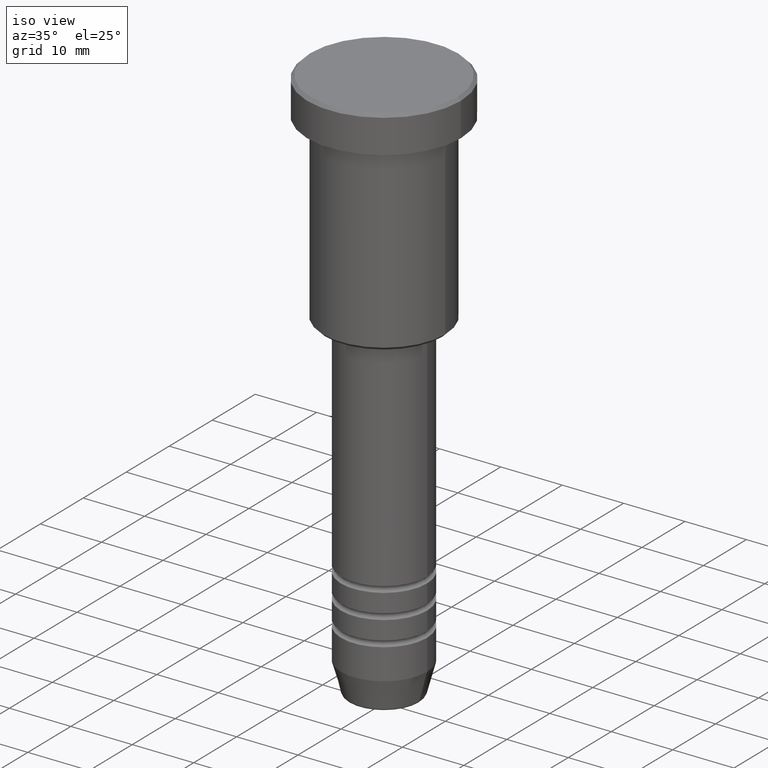
[diagram: clean part render]
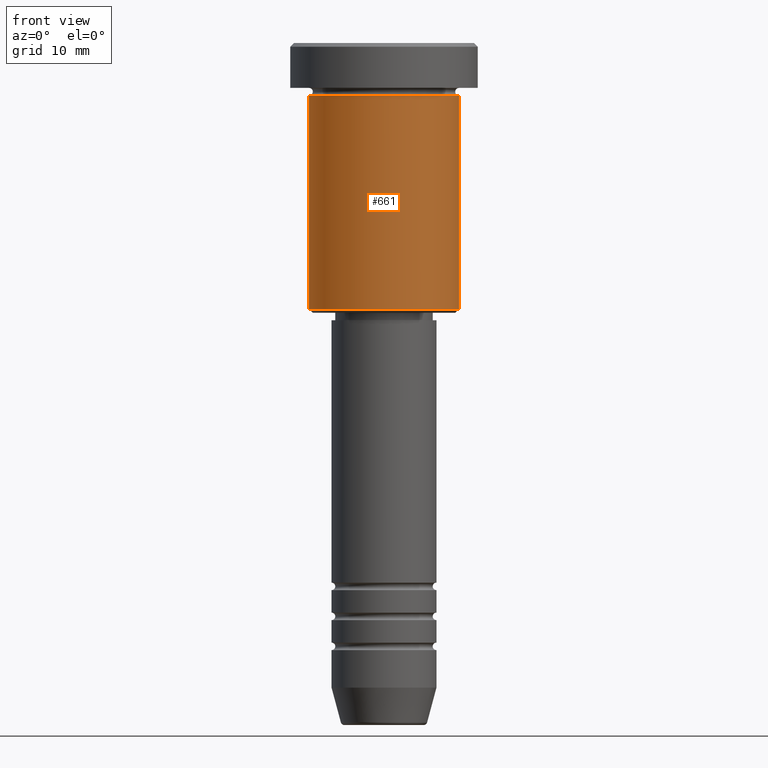
[diagram: tour spotlight — one face highlighted and labeled with its STEP entity id]
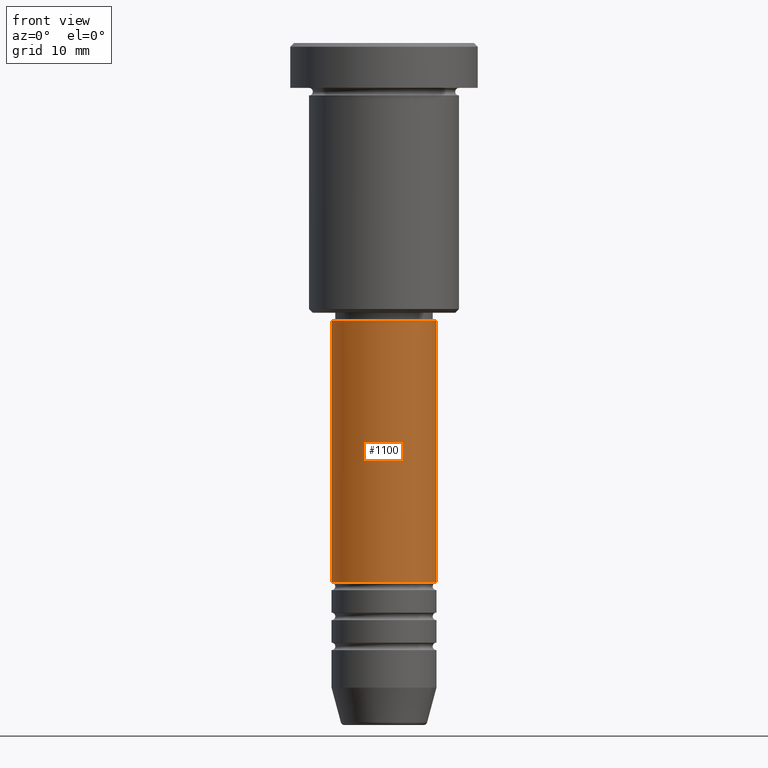
[diagram: tour spotlight — one face highlighted and labeled with its STEP entity id]
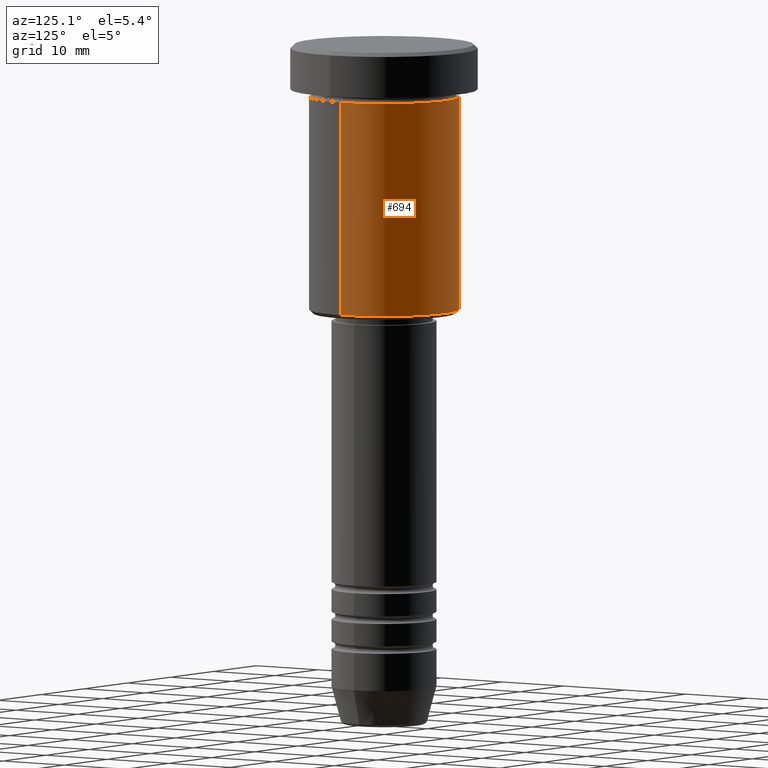
[diagram: tour spotlight — one face highlighted and labeled with its STEP entity id]
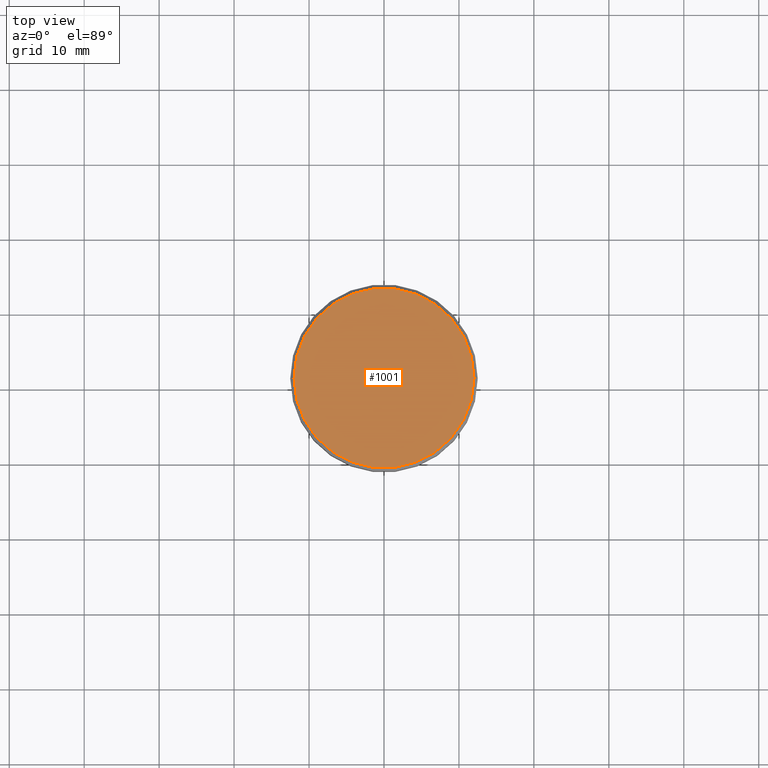
[diagram: tour spotlight — one face highlighted and labeled with its STEP entity id]
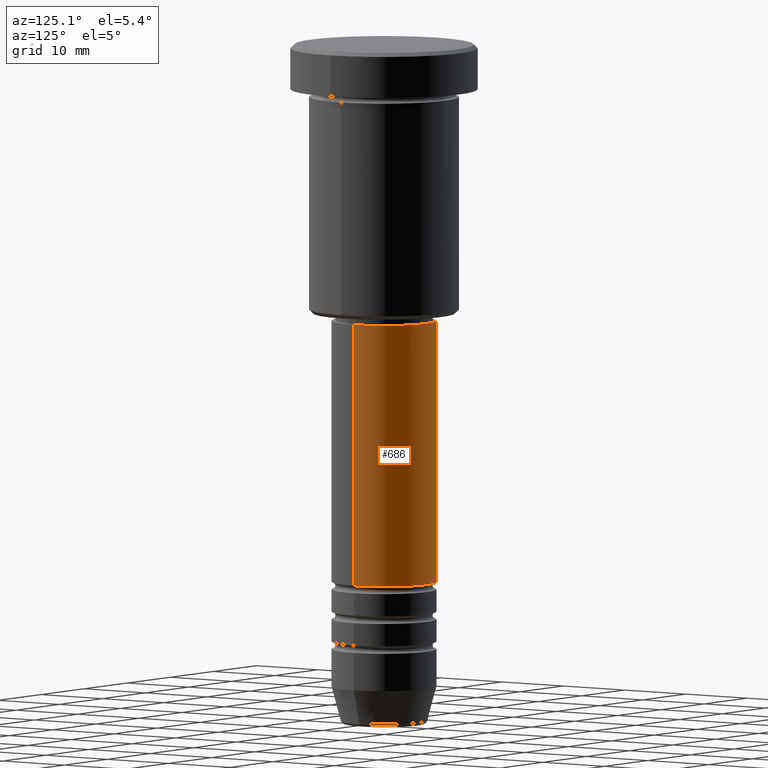
[diagram: tour spotlight — one face highlighted and labeled with its STEP entity id]
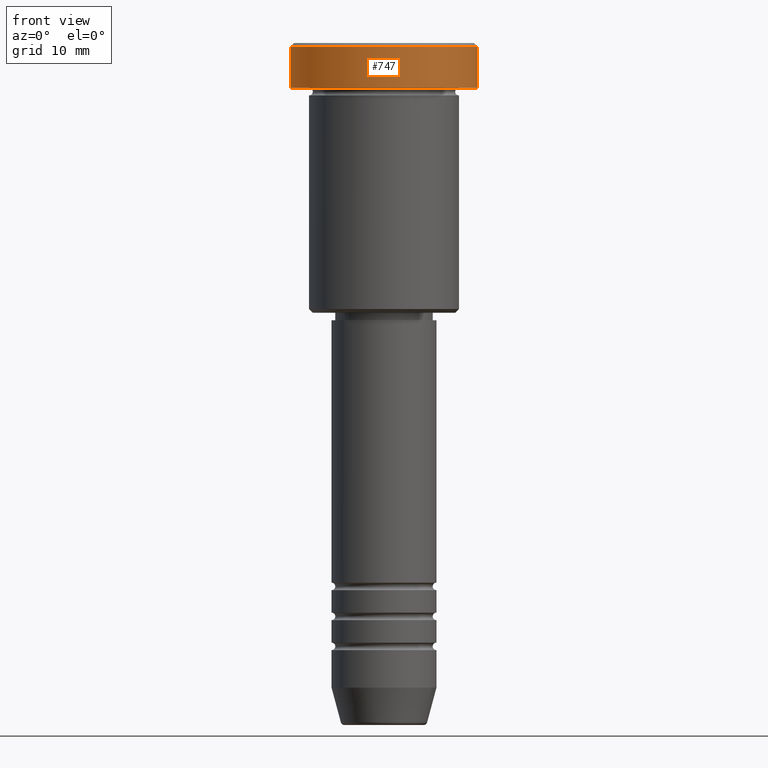
[diagram: tour spotlight — one face highlighted and labeled with its STEP entity id]
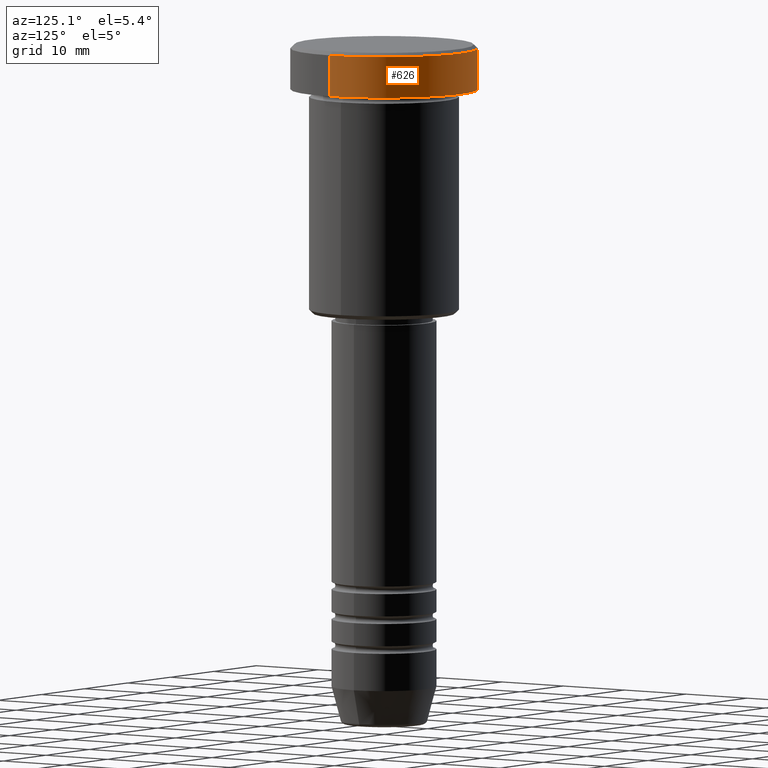
[diagram: tour spotlight — one face highlighted and labeled with its STEP entity id]
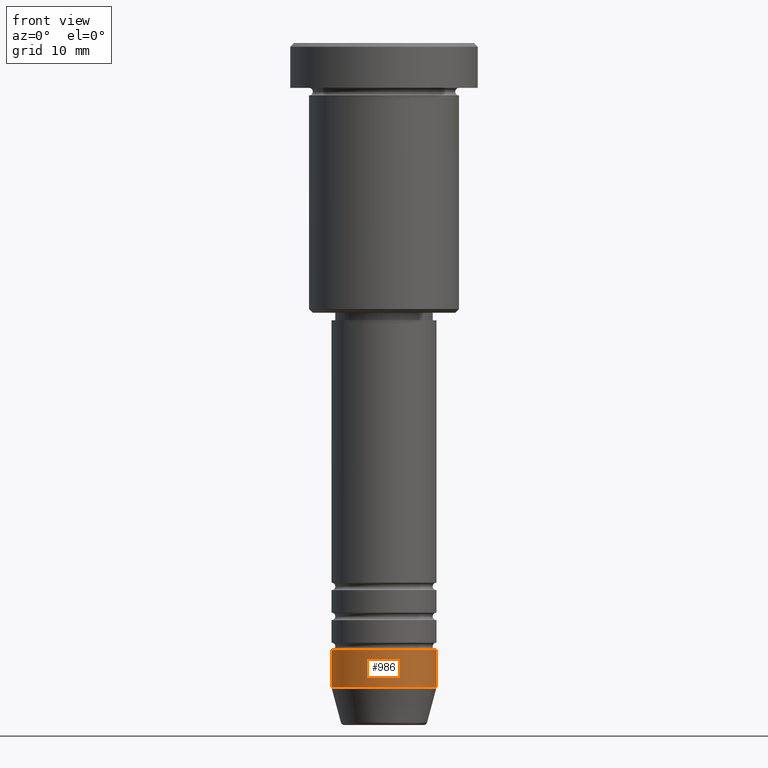
[diagram: tour spotlight — one face highlighted and labeled with its STEP entity id]
A machine part: a face-by-face anatomy tour. The part has 43 B-rep faces; the first image is the clean iso view, then the 8 largest visible faces are spotlighted one at a time (largest first), each with its STEP entity span.

Face 1 — front view, entity #661. In plain terms, the highlighted cylindrical surface (partial cylindrical patch) has radius 10 mm, axis along (-0, -0, 1).
Definition (entity closure, byte-faithful):
#31 = CYLINDRICAL_SURFACE ( 'NONE', #930, 10.00000000000000000 ) ;
#85 = VERTEX_POINT ( 'NONE', #410 ) ;
#122 = EDGE_CURVE ( 'NONE', #287, #85, #232, .T. ) ;
#144 = EDGE_CURVE ( 'NONE', #583, #287, #688, .T. ) ;
#176 = DIRECTION ( 'NONE',  ( -0.000000000000000000, -0.000000000000000000, 1.000000000000000000 ) ) ;
#232 = LINE ( 'NONE', #601, #670 ) ;
#259 = CARTESIAN_POINT ( 'NONE',  ( -10.00000000000000000, 1.224646799147353256E-15, -35.49999999999999289 ) ) ;
#276 = ORIENTED_EDGE ( 'NONE', *, *, #309, .F. ) ;
#287 = VERTEX_POINT ( 'NONE', #742 ) ;
#309 = EDGE_CURVE ( 'NONE', #583, #882, #956, .T. ) ;
#313 = CARTESIAN_POINT ( 'NONE',  ( 0.000000000000000000, 0.000000000000000000, 0.000000000000000000 ) ) ;
#346 = AXIS2_PLACEMENT_3D ( 'NONE', #640, #176, #460 ) ;
#410 = CARTESIAN_POINT ( 'NONE',  ( 10.00000000000000000, 0.000000000000000000, -6.999999999999996447 ) ) ;
#460 = DIRECTION ( 'NONE',  ( 1.000000000000000000, 0.000000000000000000, 0.000000000000000000 ) ) ;
#474 = CARTESIAN_POINT ( 'NONE',  ( -10.00000000000000000, 1.224646799147353256E-15, 0.000000000000000000 ) ) ;
#481 = DIRECTION ( 'NONE',  ( -0.000000000000000000, -0.000000000000000000, 1.000000000000000000 ) ) ;
#495 = CIRCLE ( 'NONE', #346, 10.00000000000000000 ) ;
#519 = ORIENTED_EDGE ( 'NONE', *, *, #939, .F. ) ;
#541 = DIRECTION ( 'NONE',  ( -1.000000000000000000, 0.000000000000000000, 0.000000000000000000 ) ) ;
#583 = VERTEX_POINT ( 'NONE', #259 ) ;
#590 = ORIENTED_EDGE ( 'NONE', *, *, #144, .T. ) ;
#601 = CARTESIAN_POINT ( 'NONE',  ( 10.00000000000000000, 0.000000000000000000, 0.000000000000000000 ) ) ;
#640 = CARTESIAN_POINT ( 'NONE',  ( 0.000000000000000000, 0.000000000000000000, -6.999999999999996447 ) ) ;
#661 = ADVANCED_FACE ( 'NONE', ( #750 ), #31, .T. ) ;
#670 = VECTOR ( 'NONE', #964, 1000.000000000000000 ) ;
#688 = CIRCLE ( 'NONE', #853, 10.00000000000000000 ) ;
#704 = CARTESIAN_POINT ( 'NONE',  ( 0.000000000000000000, 0.000000000000000000, -35.49999999999999289 ) ) ;
#742 = CARTESIAN_POINT ( 'NONE',  ( 10.00000000000000000, 0.000000000000000000, -35.49999999999999289 ) ) ;
#750 = FACE_OUTER_BOUND ( 'NONE', #941, .T. ) ;
#781 = VECTOR ( 'NONE', #943, 1000.000000000000000 ) ;
#819 = CARTESIAN_POINT ( 'NONE',  ( -10.00000000000000000, 1.224646799147353256E-15, -6.999999999999996447 ) ) ;
#853 = AXIS2_PLACEMENT_3D ( 'NONE', #704, #1005, #541 ) ;
#882 = VERTEX_POINT ( 'NONE', #819 ) ;
#898 = ORIENTED_EDGE ( 'NONE', *, *, #122, .T. ) ;
#930 = AXIS2_PLACEMENT_3D ( 'NONE', #313, #481, #947 ) ;
#939 = EDGE_CURVE ( 'NONE', #882, #85, #495, .T. ) ;
#941 = EDGE_LOOP ( 'NONE', ( #276, #590, #898, #519 ) ) ;
#943 = DIRECTION ( 'NONE',  ( -0.000000000000000000, -0.000000000000000000, 1.000000000000000000 ) ) ;
#947 = DIRECTION ( 'NONE',  ( 1.000000000000000000, 0.000000000000000000, 0.000000000000000000 ) ) ;
#956 = LINE ( 'NONE', #474, #781 ) ;
#964 = DIRECTION ( 'NONE',  ( -0.000000000000000000, -0.000000000000000000, 1.000000000000000000 ) ) ;
#1005 = DIRECTION ( 'NONE',  ( -0.000000000000000000, -0.000000000000000000, 1.000000000000000000 ) ) ;

Face 2 — front view, entity #1100. In plain terms, the highlighted cylindrical surface (partial cylindrical patch) has radius 7 mm, axis along (-0, -0, 1).
Definition (entity closure, byte-faithful):
#23 = ORIENTED_EDGE ( 'NONE', *, *, #199, .F. ) ;
#80 = LINE ( 'NONE', #718, #369 ) ;
#91 = DIRECTION ( 'NONE',  ( 1.000000000000000000, 0.000000000000000000, 0.000000000000000000 ) ) ;
#159 = CARTESIAN_POINT ( 'NONE',  ( 7.000000000000000888, 0.000000000000000000, -37.00000000000000000 ) ) ;
#164 = AXIS2_PLACEMENT_3D ( 'NONE', #1098, #358, #91 ) ;
#167 = DIRECTION ( 'NONE',  ( -0.000000000000000000, -0.000000000000000000, 1.000000000000000000 ) ) ;
#199 = EDGE_CURVE ( 'NONE', #1180, #1041, #478, .T. ) ;
#243 = FACE_OUTER_BOUND ( 'NONE', #509, .T. ) ;
#262 = DIRECTION ( 'NONE',  ( -0.000000000000000000, -0.000000000000000000, 1.000000000000000000 ) ) ;
#326 = DIRECTION ( 'NONE',  ( -0.000000000000000000, -0.000000000000000000, 1.000000000000000000 ) ) ;
#358 = DIRECTION ( 'NONE',  ( -0.000000000000000000, -0.000000000000000000, 1.000000000000000000 ) ) ;
#369 = VECTOR ( 'NONE', #167, 1000.000000000000000 ) ;
#422 = CARTESIAN_POINT ( 'NONE',  ( -7.000000000000000888, 8.572527594031474176E-16, -37.00000000000000000 ) ) ;
#435 = CARTESIAN_POINT ( 'NONE',  ( 7.000000000000000888, 0.000000000000000000, 0.000000000000000000 ) ) ;
#459 = AXIS2_PLACEMENT_3D ( 'NONE', #543, #262, #1090 ) ;
#478 = CIRCLE ( 'NONE', #1105, 7.000000000000000888 ) ;
#488 = EDGE_CURVE ( 'NONE', #672, #1180, #80, .T. ) ;
#498 = CARTESIAN_POINT ( 'NONE',  ( -7.000000000000000888, 8.572527594031474176E-16, -71.99999999999988631 ) ) ;
#509 = EDGE_LOOP ( 'NONE', ( #837, #602, #1036, #23 ) ) ;
#537 = CIRCLE ( 'NONE', #164, 7.000000000000000888 ) ;
#543 = CARTESIAN_POINT ( 'NONE',  ( 0.000000000000000000, 0.000000000000000000, 0.000000000000000000 ) ) ;
#554 = DIRECTION ( 'NONE',  ( 1.000000000000000000, 0.000000000000000000, 0.000000000000000000 ) ) ;
#581 = EDGE_CURVE ( 'NONE', #672, #802, #537, .T. ) ;
#602 = ORIENTED_EDGE ( 'NONE', *, *, #581, .T. ) ;
#613 = CYLINDRICAL_SURFACE ( 'NONE', #459, 7.000000000000000888 ) ;
#648 = CARTESIAN_POINT ( 'NONE',  ( 7.000000000000000888, 0.000000000000000000, -71.99999999999988631 ) ) ;
#672 = VERTEX_POINT ( 'NONE', #498 ) ;
#716 = EDGE_CURVE ( 'NONE', #802, #1041, #1037, .T. ) ;
#718 = CARTESIAN_POINT ( 'NONE',  ( -7.000000000000000888, 8.572527594031474176E-16, 0.000000000000000000 ) ) ;
#802 = VERTEX_POINT ( 'NONE', #648 ) ;
#837 = ORIENTED_EDGE ( 'NONE', *, *, #488, .F. ) ;
#1017 = CARTESIAN_POINT ( 'NONE',  ( 0.000000000000000000, 0.000000000000000000, -37.00000000000000000 ) ) ;
#1036 = ORIENTED_EDGE ( 'NONE', *, *, #716, .T. ) ;
#1037 = LINE ( 'NONE', #435, #1067 ) ;
#1041 = VERTEX_POINT ( 'NONE', #159 ) ;
#1067 = VECTOR ( 'NONE', #326, 1000.000000000000000 ) ;
#1090 = DIRECTION ( 'NONE',  ( 1.000000000000000000, 0.000000000000000000, 0.000000000000000000 ) ) ;
#1098 = CARTESIAN_POINT ( 'NONE',  ( 0.000000000000000000, 0.000000000000000000, -71.99999999999988631 ) ) ;
#1100 = ADVANCED_FACE ( 'NONE', ( #243 ), #613, .T. ) ;
#1105 = AXIS2_PLACEMENT_3D ( 'NONE', #1017, #1176, #554 ) ;
#1176 = DIRECTION ( 'NONE',  ( -0.000000000000000000, -0.000000000000000000, 1.000000000000000000 ) ) ;
#1180 = VERTEX_POINT ( 'NONE', #422 ) ;

Face 3 — auxiliary view, entity #694. In plain terms, the highlighted cylindrical surface (partial cylindrical patch) has radius 10 mm, axis along (-0, -0, 1).
Definition (entity closure, byte-faithful):
#84 = AXIS2_PLACEMENT_3D ( 'NONE', #1121, #306, #849 ) ;
#85 = VERTEX_POINT ( 'NONE', #410 ) ;
#122 = EDGE_CURVE ( 'NONE', #287, #85, #232, .T. ) ;
#132 = DIRECTION ( 'NONE',  ( -0.000000000000000000, -0.000000000000000000, 1.000000000000000000 ) ) ;
#136 = ORIENTED_EDGE ( 'NONE', *, *, #469, .F. ) ;
#188 = CIRCLE ( 'NONE', #1087, 10.00000000000000000 ) ;
#232 = LINE ( 'NONE', #601, #670 ) ;
#244 = CIRCLE ( 'NONE', #1106, 10.00000000000000000 ) ;
#246 = ORIENTED_EDGE ( 'NONE', *, *, #122, .F. ) ;
#259 = CARTESIAN_POINT ( 'NONE',  ( -10.00000000000000000, 1.224646799147353256E-15, -35.49999999999999289 ) ) ;
#287 = VERTEX_POINT ( 'NONE', #742 ) ;
#306 = DIRECTION ( 'NONE',  ( -0.000000000000000000, -0.000000000000000000, 1.000000000000000000 ) ) ;
#309 = EDGE_CURVE ( 'NONE', #583, #882, #956, .T. ) ;
#328 = CARTESIAN_POINT ( 'NONE',  ( 0.000000000000000000, 0.000000000000000000, -6.999999999999996447 ) ) ;
#410 = CARTESIAN_POINT ( 'NONE',  ( 10.00000000000000000, 0.000000000000000000, -6.999999999999996447 ) ) ;
#418 = DIRECTION ( 'NONE',  ( -0.000000000000000000, -0.000000000000000000, 1.000000000000000000 ) ) ;
#436 = CARTESIAN_POINT ( 'NONE',  ( 0.000000000000000000, 0.000000000000000000, -35.49999999999999289 ) ) ;
#453 = EDGE_CURVE ( 'NONE', #287, #583, #188, .T. ) ;
#469 = EDGE_CURVE ( 'NONE', #85, #882, #244, .T. ) ;
#474 = CARTESIAN_POINT ( 'NONE',  ( -10.00000000000000000, 1.224646799147353256E-15, 0.000000000000000000 ) ) ;
#571 = FACE_OUTER_BOUND ( 'NONE', #878, .T. ) ;
#583 = VERTEX_POINT ( 'NONE', #259 ) ;
#601 = CARTESIAN_POINT ( 'NONE',  ( 10.00000000000000000, 0.000000000000000000, 0.000000000000000000 ) ) ;
#670 = VECTOR ( 'NONE', #964, 1000.000000000000000 ) ;
#694 = ADVANCED_FACE ( 'NONE', ( #571 ), #758, .T. ) ;
#742 = CARTESIAN_POINT ( 'NONE',  ( 10.00000000000000000, 0.000000000000000000, -35.49999999999999289 ) ) ;
#758 = CYLINDRICAL_SURFACE ( 'NONE', #84, 10.00000000000000000 ) ;
#781 = VECTOR ( 'NONE', #943, 1000.000000000000000 ) ;
#819 = CARTESIAN_POINT ( 'NONE',  ( -10.00000000000000000, 1.224646799147353256E-15, -6.999999999999996447 ) ) ;
#849 = DIRECTION ( 'NONE',  ( 1.000000000000000000, 0.000000000000000000, 0.000000000000000000 ) ) ;
#878 = EDGE_LOOP ( 'NONE', ( #935, #1096, #136, #246 ) ) ;
#882 = VERTEX_POINT ( 'NONE', #819 ) ;
#935 = ORIENTED_EDGE ( 'NONE', *, *, #453, .T. ) ;
#943 = DIRECTION ( 'NONE',  ( -0.000000000000000000, -0.000000000000000000, 1.000000000000000000 ) ) ;
#956 = LINE ( 'NONE', #474, #781 ) ;
#964 = DIRECTION ( 'NONE',  ( -0.000000000000000000, -0.000000000000000000, 1.000000000000000000 ) ) ;
#1050 = DIRECTION ( 'NONE',  ( 1.000000000000000000, 0.000000000000000000, 0.000000000000000000 ) ) ;
#1087 = AXIS2_PLACEMENT_3D ( 'NONE', #436, #132, #1142 ) ;
#1096 = ORIENTED_EDGE ( 'NONE', *, *, #309, .T. ) ;
#1106 = AXIS2_PLACEMENT_3D ( 'NONE', #328, #418, #1050 ) ;
#1121 = CARTESIAN_POINT ( 'NONE',  ( 0.000000000000000000, 0.000000000000000000, 0.000000000000000000 ) ) ;
#1142 = DIRECTION ( 'NONE',  ( -1.000000000000000000, 0.000000000000000000, 0.000000000000000000 ) ) ;

Face 4 — top view, entity #1001. In plain terms, the highlighted planar face has unit normal (0, -0, 1).
Definition (entity closure, byte-faithful):
#29 = ORIENTED_EDGE ( 'NONE', *, *, #324, .T. ) ;
#146 = AXIS2_PLACEMENT_3D ( 'NONE', #595, #299, #200 ) ;
#200 = DIRECTION ( 'NONE',  ( 1.000000000000000000, 0.000000000000000000, 0.000000000000000000 ) ) ;
#299 = DIRECTION ( 'NONE',  ( -0.000000000000000000, -0.000000000000000000, 1.000000000000000000 ) ) ;
#324 = EDGE_CURVE ( 'NONE', #384, #1021, #1129, .T. ) ;
#329 = AXIS2_PLACEMENT_3D ( 'NONE', #1043, #333, #600 ) ;
#333 = DIRECTION ( 'NONE',  ( 0.000000000000000000, -0.000000000000000000, 1.000000000000000000 ) ) ;
#336 = CARTESIAN_POINT ( 'NONE',  ( 0.000000000000000000, 0.000000000000000000, 0.000000000000000000 ) ) ;
#384 = VERTEX_POINT ( 'NONE', #948 ) ;
#413 = PLANE ( 'NONE',  #329 ) ;
#414 = EDGE_CURVE ( 'NONE', #1021, #384, #578, .T. ) ;
#476 = EDGE_LOOP ( 'NONE', ( #728, #29 ) ) ;
#578 = CIRCLE ( 'NONE', #836, 11.99999999999998224 ) ;
#595 = CARTESIAN_POINT ( 'NONE',  ( 0.000000000000000000, 0.000000000000000000, 0.000000000000000000 ) ) ;
#600 = DIRECTION ( 'NONE',  ( 1.000000000000000000, 0.000000000000000000, 0.000000000000000000 ) ) ;
#683 = FACE_OUTER_BOUND ( 'NONE', #476, .T. ) ;
#696 = CARTESIAN_POINT ( 'NONE',  ( -11.99999999999998224, 0.000000000000000000, 0.000000000000000000 ) ) ;
#709 = DIRECTION ( 'NONE',  ( 1.000000000000000000, 0.000000000000000000, 0.000000000000000000 ) ) ;
#728 = ORIENTED_EDGE ( 'NONE', *, *, #414, .T. ) ;
#836 = AXIS2_PLACEMENT_3D ( 'NONE', #336, #863, #709 ) ;
#863 = DIRECTION ( 'NONE',  ( -0.000000000000000000, -0.000000000000000000, 1.000000000000000000 ) ) ;
#948 = CARTESIAN_POINT ( 'NONE',  ( 11.99999999999998224, 1.500192328955506354E-15, 0.000000000000000000 ) ) ;
#1001 = ADVANCED_FACE ( 'NONE', ( #683 ), #413, .T. ) ;
#1021 = VERTEX_POINT ( 'NONE', #696 ) ;
#1043 = CARTESIAN_POINT ( 'NONE',  ( 0.000000000000000000, 0.000000000000000000, 0.000000000000000000 ) ) ;
#1129 = CIRCLE ( 'NONE', #146, 11.99999999999998224 ) ;

Face 5 — auxiliary view, entity #686. In plain terms, the highlighted cylindrical surface (partial cylindrical patch) has radius 7 mm, axis along (-0, -0, 1).
Definition (entity closure, byte-faithful):
#21 = ORIENTED_EDGE ( 'NONE', *, *, #500, .F. ) ;
#27 = CARTESIAN_POINT ( 'NONE',  ( 0.000000000000000000, 0.000000000000000000, 0.000000000000000000 ) ) ;
#35 = CIRCLE ( 'NONE', #855, 7.000000000000000888 ) ;
#77 = DIRECTION ( 'NONE',  ( -0.000000000000000000, -0.000000000000000000, 1.000000000000000000 ) ) ;
#79 = ORIENTED_EDGE ( 'NONE', *, *, #716, .F. ) ;
#80 = LINE ( 'NONE', #718, #369 ) ;
#150 = DIRECTION ( 'NONE',  ( 1.000000000000000000, 0.000000000000000000, 0.000000000000000000 ) ) ;
#159 = CARTESIAN_POINT ( 'NONE',  ( 7.000000000000000888, 0.000000000000000000, -37.00000000000000000 ) ) ;
#167 = DIRECTION ( 'NONE',  ( -0.000000000000000000, -0.000000000000000000, 1.000000000000000000 ) ) ;
#206 = DIRECTION ( 'NONE',  ( -0.000000000000000000, -0.000000000000000000, 1.000000000000000000 ) ) ;
#326 = DIRECTION ( 'NONE',  ( -0.000000000000000000, -0.000000000000000000, 1.000000000000000000 ) ) ;
#369 = VECTOR ( 'NONE', #167, 1000.000000000000000 ) ;
#378 = ORIENTED_EDGE ( 'NONE', *, *, #1026, .T. ) ;
#407 = FACE_OUTER_BOUND ( 'NONE', #1111, .T. ) ;
#422 = CARTESIAN_POINT ( 'NONE',  ( -7.000000000000000888, 8.572527594031474176E-16, -37.00000000000000000 ) ) ;
#433 = CARTESIAN_POINT ( 'NONE',  ( 0.000000000000000000, 0.000000000000000000, -71.99999999999988631 ) ) ;
#435 = CARTESIAN_POINT ( 'NONE',  ( 7.000000000000000888, 0.000000000000000000, 0.000000000000000000 ) ) ;
#464 = DIRECTION ( 'NONE',  ( -0.000000000000000000, -0.000000000000000000, 1.000000000000000000 ) ) ;
#488 = EDGE_CURVE ( 'NONE', #672, #1180, #80, .T. ) ;
#498 = CARTESIAN_POINT ( 'NONE',  ( -7.000000000000000888, 8.572527594031474176E-16, -71.99999999999988631 ) ) ;
#500 = EDGE_CURVE ( 'NONE', #1041, #1180, #35, .T. ) ;
#513 = AXIS2_PLACEMENT_3D ( 'NONE', #433, #77, #150 ) ;
#584 = CYLINDRICAL_SURFACE ( 'NONE', #812, 7.000000000000000888 ) ;
#587 = DIRECTION ( 'NONE',  ( 1.000000000000000000, 0.000000000000000000, 0.000000000000000000 ) ) ;
#648 = CARTESIAN_POINT ( 'NONE',  ( 7.000000000000000888, 0.000000000000000000, -71.99999999999988631 ) ) ;
#672 = VERTEX_POINT ( 'NONE', #498 ) ;
#686 = ADVANCED_FACE ( 'NONE', ( #407 ), #584, .T. ) ;
#716 = EDGE_CURVE ( 'NONE', #802, #1041, #1037, .T. ) ;
#718 = CARTESIAN_POINT ( 'NONE',  ( -7.000000000000000888, 8.572527594031474176E-16, 0.000000000000000000 ) ) ;
#740 = DIRECTION ( 'NONE',  ( 1.000000000000000000, 0.000000000000000000, 0.000000000000000000 ) ) ;
#802 = VERTEX_POINT ( 'NONE', #648 ) ;
#812 = AXIS2_PLACEMENT_3D ( 'NONE', #27, #206, #587 ) ;
#855 = AXIS2_PLACEMENT_3D ( 'NONE', #912, #464, #740 ) ;
#904 = ORIENTED_EDGE ( 'NONE', *, *, #488, .T. ) ;
#912 = CARTESIAN_POINT ( 'NONE',  ( 0.000000000000000000, 0.000000000000000000, -37.00000000000000000 ) ) ;
#1025 = CIRCLE ( 'NONE', #513, 7.000000000000000888 ) ;
#1026 = EDGE_CURVE ( 'NONE', #802, #672, #1025, .T. ) ;
#1037 = LINE ( 'NONE', #435, #1067 ) ;
#1041 = VERTEX_POINT ( 'NONE', #159 ) ;
#1067 = VECTOR ( 'NONE', #326, 1000.000000000000000 ) ;
#1111 = EDGE_LOOP ( 'NONE', ( #378, #904, #21, #79 ) ) ;
#1180 = VERTEX_POINT ( 'NONE', #422 ) ;

Face 6 — front view, entity #747. In plain terms, the highlighted cylindrical surface (partial cylindrical patch) has radius 12.5 mm, axis along (-0, -0, 1).
Definition (entity closure, byte-faithful):
#67 = ORIENTED_EDGE ( 'NONE', *, *, #362, .T. ) ;
#92 = AXIS2_PLACEMENT_3D ( 'NONE', #662, #486, #846 ) ;
#111 = CIRCLE ( 'NONE', #92, 12.50000000000000000 ) ;
#114 = EDGE_LOOP ( 'NONE', ( #946, #67, #567, #356 ) ) ;
#151 = DIRECTION ( 'NONE',  ( -0.000000000000000000, -0.000000000000000000, 1.000000000000000000 ) ) ;
#196 = DIRECTION ( 'NONE',  ( 0.000000000000000000, 0.000000000000000000, -1.000000000000000000 ) ) ;
#202 = VERTEX_POINT ( 'NONE', #1062 ) ;
#217 = LINE ( 'NONE', #298, #1123 ) ;
#293 = CARTESIAN_POINT ( 'NONE',  ( 0.000000000000000000, 0.000000000000000000, -0.5000000000000196509 ) ) ;
#296 = EDGE_CURVE ( 'NONE', #202, #472, #399, .T. ) ;
#298 = CARTESIAN_POINT ( 'NONE',  ( -12.50000000000000000, 1.530808498934191521E-15, 0.000000000000000000 ) ) ;
#345 = AXIS2_PLACEMENT_3D ( 'NONE', #1048, #879, #682 ) ;
#356 = ORIENTED_EDGE ( 'NONE', *, *, #296, .T. ) ;
#362 = EDGE_CURVE ( 'NONE', #586, #487, #111, .T. ) ;
#399 = CIRCLE ( 'NONE', #630, 12.50000000000000000 ) ;
#457 = VECTOR ( 'NONE', #151, 1000.000000000000000 ) ;
#472 = VERTEX_POINT ( 'NONE', #599 ) ;
#486 = DIRECTION ( 'NONE',  ( -0.000000000000000000, -0.000000000000000000, 1.000000000000000000 ) ) ;
#487 = VERTEX_POINT ( 'NONE', #875 ) ;
#567 = ORIENTED_EDGE ( 'NONE', *, *, #903, .T. ) ;
#580 = DIRECTION ( 'NONE',  ( 1.000000000000000000, 0.000000000000000000, 0.000000000000000000 ) ) ;
#586 = VERTEX_POINT ( 'NONE', #627 ) ;
#599 = CARTESIAN_POINT ( 'NONE',  ( -12.50000000000000000, 1.530808498934191521E-15, -0.5000000000000196509 ) ) ;
#627 = CARTESIAN_POINT ( 'NONE',  ( -12.50000000000000000, 1.530808498934191521E-15, -5.999999999999996447 ) ) ;
#630 = AXIS2_PLACEMENT_3D ( 'NONE', #293, #196, #580 ) ;
#639 = EDGE_CURVE ( 'NONE', #586, #472, #217, .T. ) ;
#662 = CARTESIAN_POINT ( 'NONE',  ( 0.000000000000000000, 0.000000000000000000, -5.999999999999996447 ) ) ;
#682 = DIRECTION ( 'NONE',  ( 1.000000000000000000, 0.000000000000000000, 0.000000000000000000 ) ) ;
#747 = ADVANCED_FACE ( 'NONE', ( #1157 ), #1141, .T. ) ;
#846 = DIRECTION ( 'NONE',  ( 1.000000000000000000, 0.000000000000000000, 0.000000000000000000 ) ) ;
#875 = CARTESIAN_POINT ( 'NONE',  ( 12.50000000000000000, 0.000000000000000000, -5.999999999999996447 ) ) ;
#879 = DIRECTION ( 'NONE',  ( -0.000000000000000000, -0.000000000000000000, 1.000000000000000000 ) ) ;
#903 = EDGE_CURVE ( 'NONE', #487, #202, #982, .T. ) ;
#929 = DIRECTION ( 'NONE',  ( -0.000000000000000000, -0.000000000000000000, 1.000000000000000000 ) ) ;
#946 = ORIENTED_EDGE ( 'NONE', *, *, #639, .F. ) ;
#982 = LINE ( 'NONE', #1172, #457 ) ;
#1048 = CARTESIAN_POINT ( 'NONE',  ( 0.000000000000000000, 0.000000000000000000, 0.000000000000000000 ) ) ;
#1062 = CARTESIAN_POINT ( 'NONE',  ( 12.50000000000000000, 0.000000000000000000, -0.5000000000000196509 ) ) ;
#1123 = VECTOR ( 'NONE', #929, 1000.000000000000000 ) ;
#1141 = CYLINDRICAL_SURFACE ( 'NONE', #345, 12.50000000000000000 ) ;
#1157 = FACE_OUTER_BOUND ( 'NONE', #114, .T. ) ;
#1172 = CARTESIAN_POINT ( 'NONE',  ( 12.50000000000000000, 0.000000000000000000, 0.000000000000000000 ) ) ;

Face 7 — auxiliary view, entity #626. In plain terms, the highlighted cylindrical surface (partial cylindrical patch) has radius 12.5 mm, axis along (-0, -0, 1).
Definition (entity closure, byte-faithful):
#16 = CARTESIAN_POINT ( 'NONE',  ( 0.000000000000000000, 0.000000000000000000, 0.000000000000000000 ) ) ;
#20 = ORIENTED_EDGE ( 'NONE', *, *, #231, .T. ) ;
#151 = DIRECTION ( 'NONE',  ( -0.000000000000000000, -0.000000000000000000, 1.000000000000000000 ) ) ;
#202 = VERTEX_POINT ( 'NONE', #1062 ) ;
#208 = AXIS2_PLACEMENT_3D ( 'NONE', #446, #735, #730 ) ;
#216 = ORIENTED_EDGE ( 'NONE', *, *, #639, .T. ) ;
#217 = LINE ( 'NONE', #298, #1123 ) ;
#231 = EDGE_CURVE ( 'NONE', #487, #586, #990, .T. ) ;
#289 = AXIS2_PLACEMENT_3D ( 'NONE', #822, #364, #548 ) ;
#298 = CARTESIAN_POINT ( 'NONE',  ( -12.50000000000000000, 1.530808498934191521E-15, 0.000000000000000000 ) ) ;
#364 = DIRECTION ( 'NONE',  ( -0.000000000000000000, -0.000000000000000000, 1.000000000000000000 ) ) ;
#400 = DIRECTION ( 'NONE',  ( -0.000000000000000000, -0.000000000000000000, 1.000000000000000000 ) ) ;
#446 = CARTESIAN_POINT ( 'NONE',  ( 0.000000000000000000, 0.000000000000000000, -0.5000000000000196509 ) ) ;
#457 = VECTOR ( 'NONE', #151, 1000.000000000000000 ) ;
#472 = VERTEX_POINT ( 'NONE', #599 ) ;
#473 = CYLINDRICAL_SURFACE ( 'NONE', #870, 12.50000000000000000 ) ;
#487 = VERTEX_POINT ( 'NONE', #875 ) ;
#548 = DIRECTION ( 'NONE',  ( 1.000000000000000000, 0.000000000000000000, 0.000000000000000000 ) ) ;
#572 = EDGE_CURVE ( 'NONE', #472, #202, #1046, .T. ) ;
#586 = VERTEX_POINT ( 'NONE', #627 ) ;
#594 = ORIENTED_EDGE ( 'NONE', *, *, #903, .F. ) ;
#599 = CARTESIAN_POINT ( 'NONE',  ( -12.50000000000000000, 1.530808498934191521E-15, -0.5000000000000196509 ) ) ;
#626 = ADVANCED_FACE ( 'NONE', ( #1032 ), #473, .T. ) ;
#627 = CARTESIAN_POINT ( 'NONE',  ( -12.50000000000000000, 1.530808498934191521E-15, -5.999999999999996447 ) ) ;
#639 = EDGE_CURVE ( 'NONE', #586, #472, #217, .T. ) ;
#730 = DIRECTION ( 'NONE',  ( 1.000000000000000000, 0.000000000000000000, 0.000000000000000000 ) ) ;
#735 = DIRECTION ( 'NONE',  ( 0.000000000000000000, 0.000000000000000000, -1.000000000000000000 ) ) ;
#822 = CARTESIAN_POINT ( 'NONE',  ( 0.000000000000000000, 0.000000000000000000, -5.999999999999996447 ) ) ;
#829 = DIRECTION ( 'NONE',  ( 1.000000000000000000, 0.000000000000000000, 0.000000000000000000 ) ) ;
#870 = AXIS2_PLACEMENT_3D ( 'NONE', #16, #400, #829 ) ;
#875 = CARTESIAN_POINT ( 'NONE',  ( 12.50000000000000000, 0.000000000000000000, -5.999999999999996447 ) ) ;
#903 = EDGE_CURVE ( 'NONE', #487, #202, #982, .T. ) ;
#929 = DIRECTION ( 'NONE',  ( -0.000000000000000000, -0.000000000000000000, 1.000000000000000000 ) ) ;
#982 = LINE ( 'NONE', #1172, #457 ) ;
#987 = EDGE_LOOP ( 'NONE', ( #20, #216, #1007, #594 ) ) ;
#990 = CIRCLE ( 'NONE', #289, 12.50000000000000000 ) ;
#1007 = ORIENTED_EDGE ( 'NONE', *, *, #572, .T. ) ;
#1032 = FACE_OUTER_BOUND ( 'NONE', #987, .T. ) ;
#1046 = CIRCLE ( 'NONE', #208, 12.50000000000000000 ) ;
#1062 = CARTESIAN_POINT ( 'NONE',  ( 12.50000000000000000, 0.000000000000000000, -0.5000000000000196509 ) ) ;
#1123 = VECTOR ( 'NONE', #929, 1000.000000000000000 ) ;
#1172 = CARTESIAN_POINT ( 'NONE',  ( 12.50000000000000000, 0.000000000000000000, 0.000000000000000000 ) ) ;

Face 8 — front view, entity #986. In plain terms, the highlighted cylindrical surface (partial cylindrical patch) has radius 7 mm, axis along (-0, -0, 1).
Definition (entity closure, byte-faithful):
#86 = AXIS2_PLACEMENT_3D ( 'NONE', #227, #1058, #522 ) ;
#104 = FACE_OUTER_BOUND ( 'NONE', #582, .T. ) ;
#139 = VECTOR ( 'NONE', #194, 1000.000000000000000 ) ;
#194 = DIRECTION ( 'NONE',  ( -0.000000000000000000, -0.000000000000000000, 1.000000000000000000 ) ) ;
#227 = CARTESIAN_POINT ( 'NONE',  ( 0.000000000000000000, 0.000000000000000000, -86.00000000000000000 ) ) ;
#229 = VERTEX_POINT ( 'NONE', #1099 ) ;
#236 = DIRECTION ( 'NONE',  ( 1.000000000000000000, 0.000000000000000000, 0.000000000000000000 ) ) ;
#357 = DIRECTION ( 'NONE',  ( 1.000000000000000000, 0.000000000000000000, 0.000000000000000000 ) ) ;
#370 = ORIENTED_EDGE ( 'NONE', *, *, #666, .T. ) ;
#390 = VERTEX_POINT ( 'NONE', #859 ) ;
#393 = LINE ( 'NONE', #660, #139 ) ;
#397 = CIRCLE ( 'NONE', #743, 7.000000000000000000 ) ;
#398 = VECTOR ( 'NONE', #976, 1000.000000000000000 ) ;
#497 = ORIENTED_EDGE ( 'NONE', *, *, #1134, .T. ) ;
#522 = DIRECTION ( 'NONE',  ( 1.000000000000000000, 0.000000000000000000, 0.000000000000000000 ) ) ;
#561 = CARTESIAN_POINT ( 'NONE',  ( 0.000000000000000000, 0.000000000000000000, -80.99999999999998579 ) ) ;
#582 = EDGE_LOOP ( 'NONE', ( #823, #497, #370, #1030 ) ) ;
#638 = LINE ( 'NONE', #801, #398 ) ;
#660 = CARTESIAN_POINT ( 'NONE',  ( 7.000000000000000000, 0.000000000000000000, 0.000000000000000000 ) ) ;
#664 = VERTEX_POINT ( 'NONE', #1112 ) ;
#666 = EDGE_CURVE ( 'NONE', #390, #229, #393, .T. ) ;
#707 = CIRCLE ( 'NONE', #86, 7.000000000000000000 ) ;
#743 = AXIS2_PLACEMENT_3D ( 'NONE', #561, #1083, #357 ) ;
#751 = CYLINDRICAL_SURFACE ( 'NONE', #1145, 7.000000000000000000 ) ;
#801 = CARTESIAN_POINT ( 'NONE',  ( -7.000000000000000000, 8.572527594031473190E-16, 0.000000000000000000 ) ) ;
#821 = EDGE_CURVE ( 'NONE', #983, #229, #397, .T. ) ;
#823 = ORIENTED_EDGE ( 'NONE', *, *, #1034, .F. ) ;
#859 = CARTESIAN_POINT ( 'NONE',  ( 7.000000000000000000, 0.000000000000000000, -86.00000000000000000 ) ) ;
#938 = CARTESIAN_POINT ( 'NONE',  ( -7.000000000000000000, 8.572527594031473190E-16, -80.99999999999998579 ) ) ;
#976 = DIRECTION ( 'NONE',  ( -0.000000000000000000, -0.000000000000000000, 1.000000000000000000 ) ) ;
#983 = VERTEX_POINT ( 'NONE', #938 ) ;
#986 = ADVANCED_FACE ( 'NONE', ( #104 ), #751, .T. ) ;
#1030 = ORIENTED_EDGE ( 'NONE', *, *, #821, .F. ) ;
#1034 = EDGE_CURVE ( 'NONE', #664, #983, #638, .T. ) ;
#1051 = DIRECTION ( 'NONE',  ( -0.000000000000000000, -0.000000000000000000, 1.000000000000000000 ) ) ;
#1058 = DIRECTION ( 'NONE',  ( -0.000000000000000000, -0.000000000000000000, 1.000000000000000000 ) ) ;
#1083 = DIRECTION ( 'NONE',  ( -0.000000000000000000, -0.000000000000000000, 1.000000000000000000 ) ) ;
#1099 = CARTESIAN_POINT ( 'NONE',  ( 7.000000000000000000, 0.000000000000000000, -80.99999999999998579 ) ) ;
#1112 = CARTESIAN_POINT ( 'NONE',  ( -7.000000000000000000, 8.572527594031473190E-16, -86.00000000000000000 ) ) ;
#1113 = CARTESIAN_POINT ( 'NONE',  ( 0.000000000000000000, 0.000000000000000000, 0.000000000000000000 ) ) ;
#1134 = EDGE_CURVE ( 'NONE', #664, #390, #707, .T. ) ;
#1145 = AXIS2_PLACEMENT_3D ( 'NONE', #1113, #1051, #236 ) ;